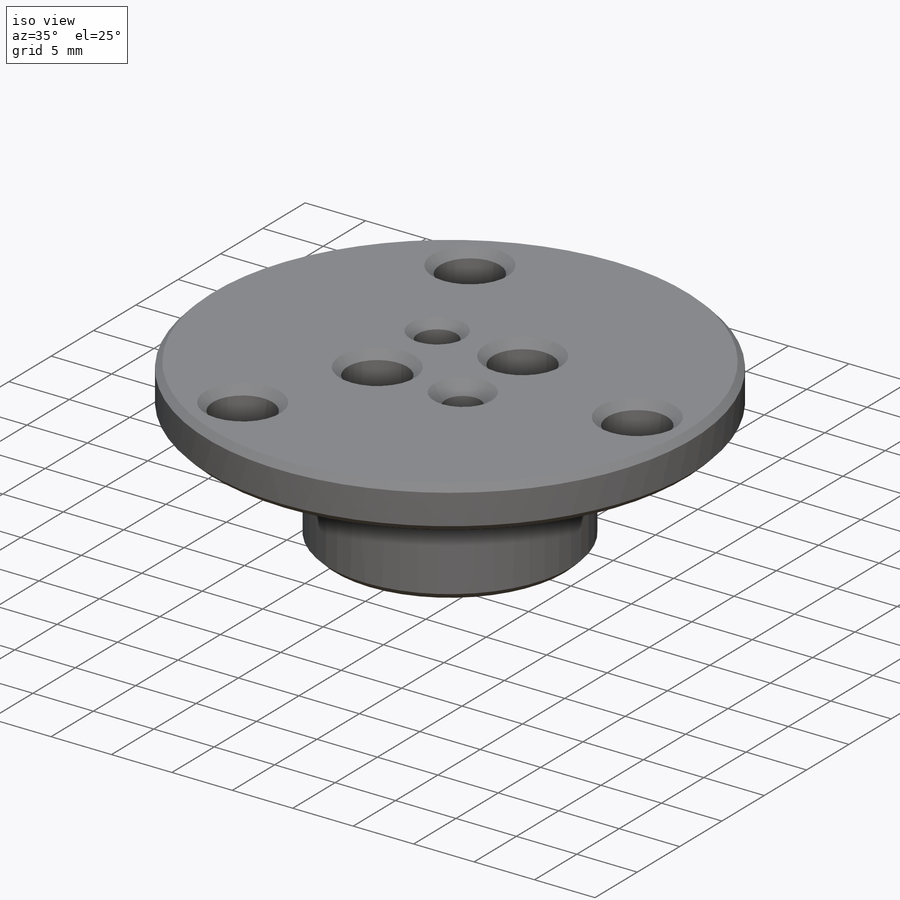
[diagram: iso view]
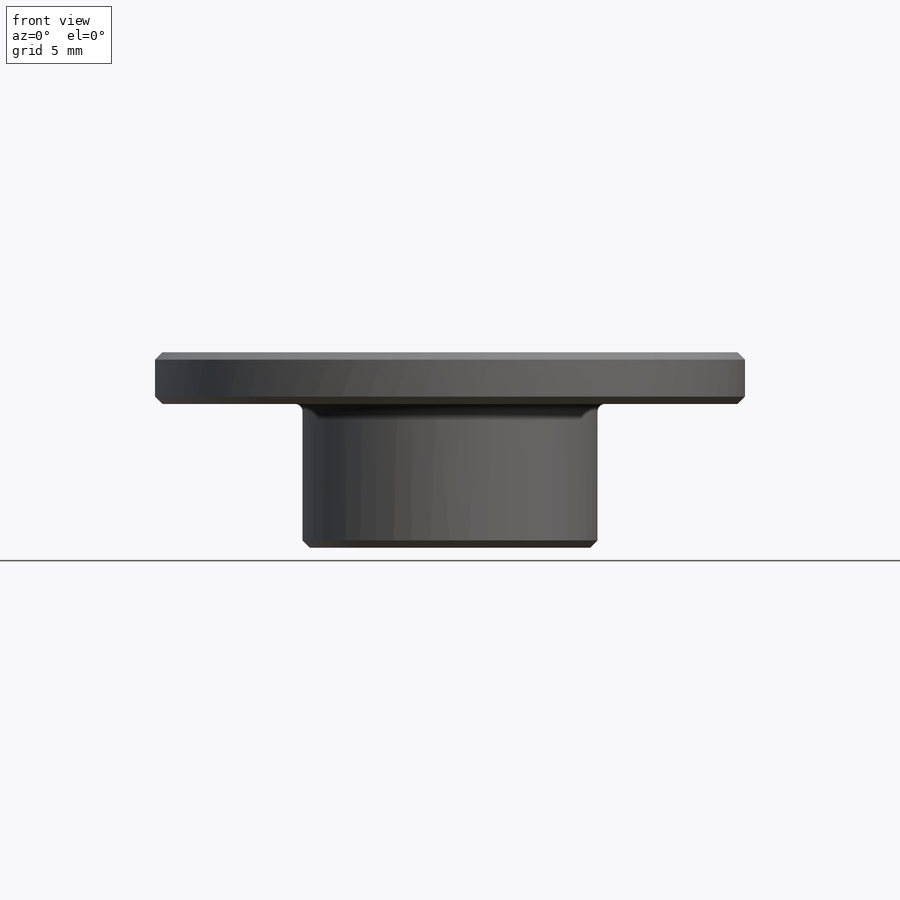
[diagram: front view]
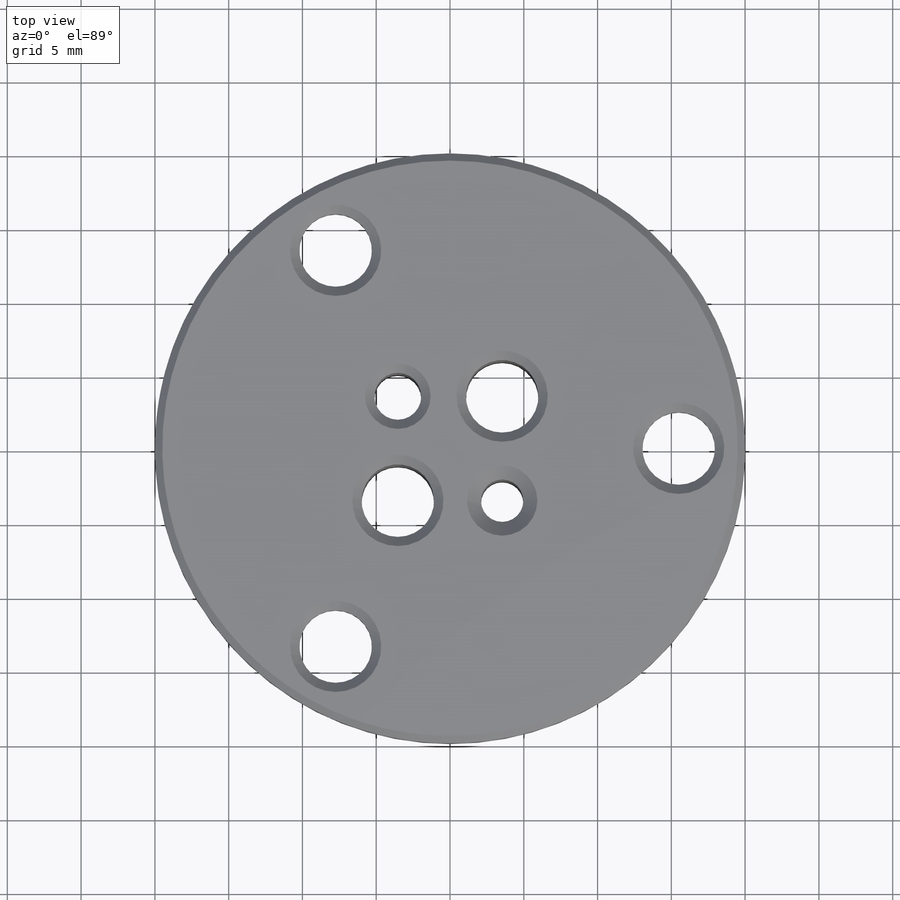
[diagram: top view]
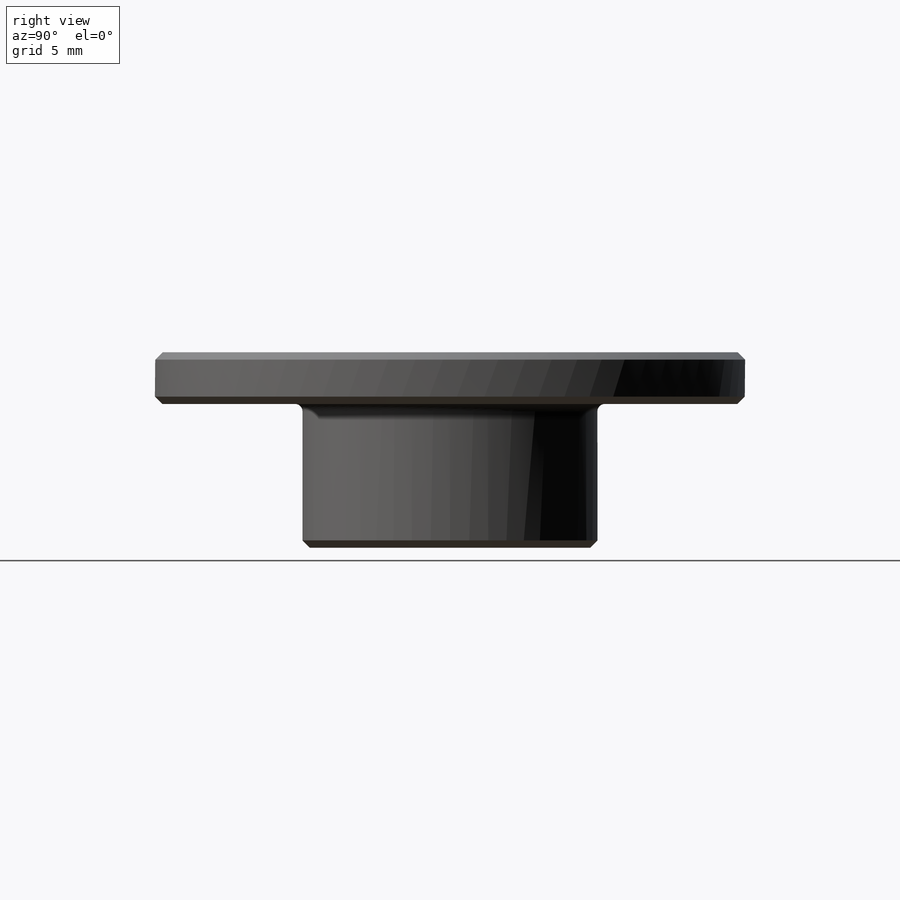
[diagram: right view]
SOLIDWORKS PART (.sldprt)
format: sldprt  version: not decoded by parser v0  size: 475,648 bytes
history: native  units: mm
features: sketch x13, hole x4, material x1, revolve x1, cut_extrude x1, mirror x1, thread x1, chamfer x1, fillet x1 (+11 scaffold rows collapsed)
feature tree (35):
  scaffold x11  (default folders/planes/origin — collapsed)
  material  "6061 Alloy"
  sketch  "Sketch1"  dims[D1=20.0mm D2=40.0mm D3=~9.743281mm D4=3.5mm]
  revolve  "Revolve1"  Angle=360deg
  sketch  "Sketch3"  dims[c1.D1=35.0mm c1.D2=30.0mm c1.D3=6.25mm c2.D1=10.0mm]
  hole  "#8 Clearance Hole2"  Diameter=4.9149mm Depth=13.243281mm
  sketch  "3DSketch1"
  sketch  "Sketch4"  dims[hole-wizard template sketch: 47 standard entries collapsed; hole parameters kept: c15.Thru Hole Depth=~13.243281mm c15.Near C'Sink Dia.=6.1849mm c15.D4=~3.666174mm c15.Near C'Sink Angle=90.0deg c15.Far C'Sink Dia.=6.1849mm c15.D6=~9.919017mm c15.Far C'Sink Angle=90.0deg]
  hole  "1/8 (0.125) Diameter Hole1"  Diameter=3.175mm Depth=13.243281mm
  sketch  "3DSketch2"
  sketch  "Sketch5"  dims[hole-wizard template sketch: 47 standard entries collapsed; hole parameters kept: c15.Thru Hole Depth=~13.243281mm c15.Near C'Sink Dia.=4.445mm c15.D4=~3.666174mm c15.Near C'Sink Angle=90.0deg c15.Far C'Sink Dia.=4.445mm c15.D6=~9.919017mm c15.Far C'Sink Angle=90.0deg]
  sketch  "Sketch6"  dims[c1.D1=~10.826118mm c2.D1=~2.999744deg c3.D1=35.0mm c3.D2=10.0mm c3.D3=~10.482747mm]
  cut_extrude  "Extrude1"  [1 undecoded]
  mirror  "Mirror1"
  sketch  "Sketch7"  dims[c1.D1=31.0mm c1.D2=~28.233861mm c2.D2=120.0deg c2.D1=5.5mm]
  hole  "#8 Clearance Hole1"  Diameter=4.9149mm Depth=3.5mm
  sketch  "3DSketch3"
  sketch  "Sketch8"  dims[hole-wizard template sketch: 47 standard entries collapsed; hole parameters kept: c15.Thru Hole Depth=3.5mm c15.Near C'Sink Dia.=6.1849mm c15.D4=~3.666174mm c15.Near C'Sink Angle=90.0deg c15.Far C'Sink Dia.=6.1722mm c15.D6=~9.919017mm c15.Far C'Sink Angle=90.0deg]
  sketch  "Sketch9"  dims[D1=8.0mm]
  hole  "#6-40 Tapped Hole1"  Diameter=2.8702mm Depth=13.243281mm
  sketch  "3DSketch4"
  sketch  "Sketch10"  dims[hole-wizard template sketch: 46 standard entries collapsed; hole parameters kept: c15.Thru Tap Drill Dia.=2.8702mm c15.Thru Tap Drill Depth=~13.243281mm c15.Near C'Sink Dia.=4.7752mm c15.D4=~3.666174mm c15.Near C'Sink Angle=90.0deg c15.Far C'Sink Dia.=4.7752mm c15.D6=~9.919017mm c15.Far C'Sink Angle=90.0deg]
  thread  "Hole Thread1"  Diameter=3.5052mm  [1 undecoded]
  chamfer  "Chamfer1"  Distance=0.5mm Angle=45deg
  fillet  "Fillet1"  Radius=0.5mm
decode coverage: 17 of 23 modeling features carry decoded parameters
note: ~ marks probable driven/reference dimensions
note: 2 parameter values undecoded
summary: Diameter pulled from absorbed wizard sketch
note: suppression state not decoded; provenance and decode notes live in map.json
